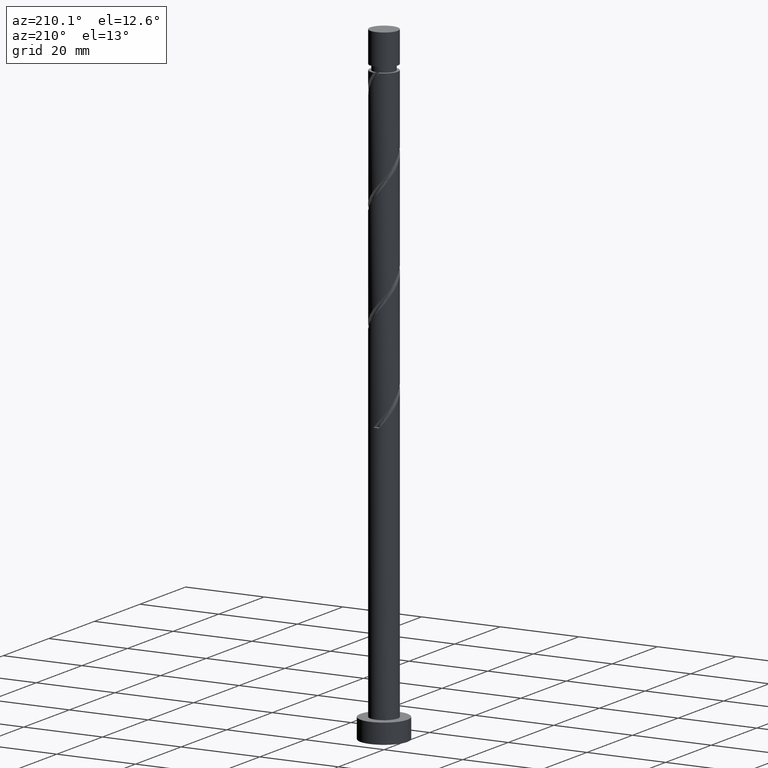
[diagram: clean part render]
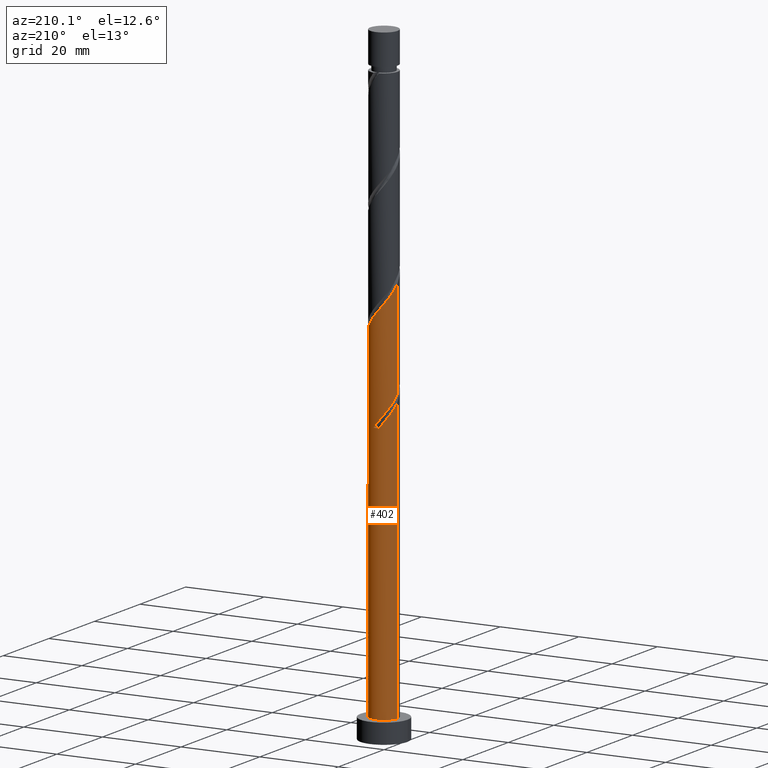
[diagram: same view with one face highlighted and labeled with its STEP entity id]
A machine part, auxiliary view. The second image highlights one B-rep face of the part: STEP entity #402.
In plain terms, the highlighted cylindrical surface (edge-blend (fillet) strip) has radius 3.5 mm, axis along (-0, -0, -1).
Its self-contained STEP definition (entity closure, byte-faithful):
#3 = CARTESIAN_POINT ( 'NONE',  ( -3.500000000000005329, 0.4008512458479243090, 76.10551955723198603 ) ) ;
#21 = LINE ( 'NONE', #39, #1035 ) ;
#39 = CARTESIAN_POINT ( 'NONE',  ( -3.500000000000000000, 0.000000000000000000, 160.0000000000000000 ) ) ;
#43 = CARTESIAN_POINT ( 'NONE',  ( 3.465271467025468954, 0.7036533828274212921, 90.77426732283748834 ) ) ;
#61 = CARTESIAN_POINT ( 'NONE',  ( -3.500000000000005329, 0.4008512458479249752, 102.7721862238986148 ) ) ;
#69 = CARTESIAN_POINT ( 'NONE',  ( 3.295966512314560060, 1.177541825032570211, 91.38032792889809741 ) ) ;
#76 = AXIS2_PLACEMENT_3D ( 'NONE', #310, #812, #1475 ) ;
#99 = CARTESIAN_POINT ( 'NONE',  ( -3.295966512314554286, 1.177541825032570211, 76.83487338344357909 ) ) ;
#107 = CARTESIAN_POINT ( 'NONE',  ( -0.6964912059746338757, 3.430000000000004601, 70.77426732283748834 ) ) ;
#113 = CARTESIAN_POINT ( 'NONE',  ( -3.409370647451654079, 0.7913228091588907498, 75.62275217132236094 ) ) ;
#120 = CARTESIAN_POINT ( 'NONE',  ( -3.295595603951480435, 1.281516304446028265, 75.01669156526173765 ) ) ;
#132 = CARTESIAN_POINT ( 'NONE',  ( -1.634621088283055190, 3.094836651220925994, 71.98638853495872070 ) ) ;
#143 = CARTESIAN_POINT ( 'NONE',  ( -2.801055960780711729, 2.158082465505006375, 100.4712370198071909 ) ) ;
#166 = ORIENTED_EDGE ( 'NONE', *, *, #245, .F. ) ;
#195 =( BOUNDED_CURVE ( )  B_SPLINE_CURVE ( 2, ( #107, #879, #132, #1403, #632, #1001, #1292, #120, #113, #3, #1133 ),
 .UNSPECIFIED., .F., .T. ) 
 B_SPLINE_CURVE_WITH_KNOTS ( ( 3, 2, 2, 2, 2, 3 ),
 ( 0.000000000000000000, 0.01136363636363635354, 0.02272727272727270709, 0.03409090909090906063, 0.04545454545454541417, 0.05452521624175145354 ),
 .UNSPECIFIED. ) 
 CURVE ( )  GEOMETRIC_REPRESENTATION_ITEM ( )  RATIONAL_B_SPLINE_CURVE ( ( 0.9090909090909231605, 0.8998376744372253988, 0.9090909090909231605, 0.8998376744372253988, 0.9090909090909231605, 0.8998376744372253988, 0.9090909090909231605, 0.8998376744372253988, 0.9090909090909231605, 0.9017048011080028846, 0.9061101570135636774 ) ) 
 REPRESENTATION_ITEM ( '' )  );
#205 = CARTESIAN_POINT ( 'NONE',  ( -0.6964912059746338757, 3.430000000000004601, 70.77426732283748834 ) ) ;
#226 = CARTESIAN_POINT ( 'NONE',  ( -2.534748123757047278, 2.465418092830385266, 75.01669156526170923 ) ) ;
#245 = EDGE_CURVE ( 'NONE', #1508, #1474, #21, .T. ) ;
#264 = CARTESIAN_POINT ( 'NONE',  ( -0.6964912059746338757, 3.430000000000004601, 97.44093398950415974 ) ) ;
#278 = EDGE_LOOP ( 'NONE', ( #874, #434, #1178, #166, #1589, #1479, #1054, #528 ) ) ;
#310 = CARTESIAN_POINT ( 'NONE',  ( 0.000000000000000000, 0.000000000000000000, 70.77426732283748834 ) ) ;
#313 = VERTEX_POINT ( 'NONE', #1058 ) ;
#317 = CARTESIAN_POINT ( 'NONE',  ( 0.000000000000000000, 0.000000000000000000, 160.0000000000000000 ) ) ;
#364 = CARTESIAN_POINT ( 'NONE',  ( -0.7994601608701848994, 3.444429978171526852, 72.59244914101931556 ) ) ;
#377 = CARTESIAN_POINT ( 'NONE',  ( -0.2980642516491546212, 3.487285147774530358, 71.98638853495872070 ) ) ;
#402 = ADVANCED_FACE ( 'NONE', ( #1601 ), #1121, .T. ) ;
#417 = VERTEX_POINT ( 'NONE', #1354 ) ;
#434 = ORIENTED_EDGE ( 'NONE', *, *, #1279, .T. ) ;
#443 = LINE ( 'NONE', #957, #1655 ) ;
#454 = CARTESIAN_POINT ( 'NONE',  ( -0.2033316575718749075, 3.530140317377540082, 96.83487338344356488 ) ) ;
#484 = CARTESIAN_POINT ( 'NONE',  ( -1.737484471651192353, 3.079672406947898899, 73.80457035314051950 ) ) ;
#487 = DIRECTION ( 'NONE',  ( -0.000000000000000000, -0.000000000000000000, -1.000000000000000000 ) ) ;
#499 = CARTESIAN_POINT ( 'NONE',  ( -1.268472316260688793, 3.262051192559713098, 73.19850974707995306 ) ) ;
#514 = CARTESIAN_POINT ( 'NONE',  ( 1.737484471651195017, 3.079672406947903784, 94.41063095920114279 ) ) ;
#519 = AXIS2_PLACEMENT_3D ( 'NONE', #317, #711, #721 ) ;
#528 = ORIENTED_EDGE ( 'NONE', *, *, #915, .F. ) ;
#554 = AXIS2_PLACEMENT_3D ( 'NONE', #702, #1614, #965 ) ;
#562 = CARTESIAN_POINT ( 'NONE',  ( 2.534748123757053495, 2.465418092830386598, 93.19850974707991043 ) ) ;
#573 = CARTESIAN_POINT ( 'NONE',  ( -3.499999999999999556, 3.066148244216776154E-15, 78.29038846880504821 ) ) ;
#580 = CARTESIAN_POINT ( 'NONE',  ( 3.126661557603649388, 1.651430267237720129, 91.98638853495874912 ) ) ;
#583 = VERTEX_POINT ( 'NONE', #205 ) ;
#616 = EDGE_CURVE ( 'NONE', #583, #1508, #195, .T. ) ;
#632 = CARTESIAN_POINT ( 'NONE',  ( -2.440323691484713731, 2.508948042662193956, 73.19850974707991043 ) ) ;
#651 = CARTESIAN_POINT ( 'NONE',  ( -3.409370647451654079, 0.7913228091588907498, 102.2894188379889755 ) ) ;
#653 = CARTESIAN_POINT ( 'NONE',  ( -3.500000000000000000, 0.000000000000000000, 5.000000000000000000 ) ) ;
#685 = CARTESIAN_POINT ( 'NONE',  ( 2.830704840680350998, 2.058424180034053474, 92.59244914101930135 ) ) ;
#702 = CARTESIAN_POINT ( 'NONE',  ( 0.000000000000000000, 0.000000000000000000, 5.000000000000000000 ) ) ;
#705 = CARTESIAN_POINT ( 'NONE',  ( 3.500000000000004885, 1.929429870751030982E-15, 89.92481284353657145 ) ) ;
#711 = DIRECTION ( 'NONE',  ( -0.000000000000000000, -0.000000000000000000, -1.000000000000000000 ) ) ;
#721 = DIRECTION ( 'NONE',  ( -1.000000000000000000, 0.000000000000000000, 0.000000000000000000 ) ) ;
#728 = EDGE_CURVE ( 'NONE', #784, #1048, #1460, .T. ) ;
#772 = EDGE_CURVE ( 'NONE', #313, #417, #1049, .T. ) ;
#779 = CARTESIAN_POINT ( 'NONE',  ( -1.189650754377394204, 3.329859682622471340, 98.04699459556476882 ) ) ;
#784 = VERTEX_POINT ( 'NONE', #573 ) ;
#812 = DIRECTION ( 'NONE',  ( 0.000000000000000000, -0.000000000000000000, -1.000000000000000000 ) ) ;
#813 = VECTOR ( 'NONE', #487, 1000.000000000000000 ) ;
#818 = CIRCLE ( 'NONE', #76, 3.500000000000000000 ) ;
#839 = CARTESIAN_POINT ( 'NONE',  ( 3.500000000000005773, 0.1007143428333791696, 90.04691084825481084 ) ) ;
#865 = CARTESIAN_POINT ( 'NONE',  ( -2.830704840680345669, 2.058424180034052586, 75.62275217132237515 ) ) ;
#872 = CARTESIAN_POINT ( 'NONE',  ( 0.2033316575718757679, 3.530140317377534309, 71.38032792889809741 ) ) ;
#874 = ORIENTED_EDGE ( 'NONE', *, *, #772, .F. ) ;
#879 = CARTESIAN_POINT ( 'NONE',  ( -1.189650754377394204, 3.329859682622471340, 71.38032792889809741 ) ) ;
#904 = CARTESIAN_POINT ( 'NONE',  ( 3.494208578988649894, 0.2012620344778335846, 90.16820671677687926 ) ) ;
#915 = EDGE_CURVE ( 'NONE', #417, #784, #997, .T. ) ;
#950 = CARTESIAN_POINT ( 'NONE',  ( -3.295595603951480435, 1.281516304446028265, 101.6833582319284091 ) ) ;
#952 = VERTEX_POINT ( 'NONE', #1546 ) ;
#957 = CARTESIAN_POINT ( 'NONE',  ( 3.500000000000000000, 4.286263797015736595E-16, 160.0000000000000000 ) ) ;
#965 = DIRECTION ( 'NONE',  ( 1.000000000000000000, 0.000000000000000000, 0.000000000000000000 ) ) ;
#997 = LINE ( 'NONE', #1515, #813 ) ;
#1001 = CARTESIAN_POINT ( 'NONE',  ( -2.801055960780711729, 2.158082465505006375, 73.80457035314053371 ) ) ;
#1032 = CARTESIAN_POINT ( 'NONE',  ( -1.634621088283055190, 3.094836651220925994, 98.65305520162539210 ) ) ;
#1035 = VECTOR ( 'NONE', #1347, 1000.000000000000000 ) ;
#1048 = VERTEX_POINT ( 'NONE', #1654 ) ;
#1049 =( BOUNDED_CURVE ( )  B_SPLINE_CURVE ( 2, ( #705, #839, #904, #43, #69, #580, #685, #562, #1097, #514, #1210, #1464, #1077, #454, #264, #779, #1032, #1310, #1223, #143, #1598, #950, #651, #61, #1066 ),
 .UNSPECIFIED., .F., .T. ) 
 B_SPLINE_CURVE_WITH_KNOTS ( ( 3, 2, 2, 2, 2, 2, 2, 2, 2, 2, 2, 2, 3 ),
 ( 0.1795252162417513286, 0.1818181818181817677, 0.1931818181818182323, 0.2045454545454545858, 0.2159090909090909394, 0.2272727272727272929, 0.2386363636363636465, 0.2500000000000000000, 0.2613636363636363535, 0.2727272727272727071, 0.2840909090909090606, 0.2954545454545454142, 0.3045252162417514397 ),
 .UNSPECIFIED. ) 
 CURVE ( )  GEOMETRIC_REPRESENTATION_ITEM ( )  RATIONAL_B_SPLINE_CURVE ( ( 0.9061101570135635663, 0.9072237824201456746, 0.9090909090909231605, 0.8998376744372253988, 0.9090909090909231605, 0.8998376744372253988, 0.9090909090909231605, 0.8998376744372253988, 0.9090909090909231605, 0.8998376744372253988, 0.9090909090909231605, 0.8998376744372253988, 0.9090909090909231605, 0.8998376744372253988, 0.9090909090909231605, 0.8998376744372253988, 0.9090909090909231605, 0.8998376744372253988, 0.9090909090909231605, 0.8998376744372253988, 0.9090909090909231605, 0.8998376744372253988, 0.9090909090909231605, 0.9017048011080028846, 0.9061101570135635663 ) ) 
 REPRESENTATION_ITEM ( '' )  );
#1054 = ORIENTED_EDGE ( 'NONE', *, *, #728, .F. ) ;
#1058 = CARTESIAN_POINT ( 'NONE',  ( 3.500000000000004885, 1.929429870751030982E-15, 89.92481284353658566 ) ) ;
#1062 = CIRCLE ( 'NONE', #554, 3.500000000000000000 ) ;
#1066 = CARTESIAN_POINT ( 'NONE',  ( -3.500000000000004885, -2.093954898489490264E-15, 103.2581461768699569 ) ) ;
#1077 = CARTESIAN_POINT ( 'NONE',  ( 0.2980642516491557870, 3.487285147774535243, 96.22881277738294159 ) ) ;
#1097 = CARTESIAN_POINT ( 'NONE',  ( 2.136116297704123035, 2.772545249889145413, 93.80457035314049108 ) ) ;
#1121 = CYLINDRICAL_SURFACE ( 'NONE', #519, 3.500000000000000000 ) ;
#1133 = CARTESIAN_POINT ( 'NONE',  ( -3.500000000000004441, -2.093954898489490658E-15, 76.59147951020328549 ) ) ;
#1178 = ORIENTED_EDGE ( 'NONE', *, *, #1629, .T. ) ;
#1210 = CARTESIAN_POINT ( 'NONE',  ( 1.268472316260691013, 3.262051192559717538, 95.01669156526173765 ) ) ;
#1223 = CARTESIAN_POINT ( 'NONE',  ( -2.440323691484713731, 2.508948042662193956, 99.86517641374655341 ) ) ;
#1268 = CARTESIAN_POINT ( 'NONE',  ( -3.465271467025464069, 0.7036533828274215141, 77.44093398950417395 ) ) ;
#1279 = EDGE_CURVE ( 'NONE', #313, #952, #443, .T. ) ;
#1292 = CARTESIAN_POINT ( 'NONE',  ( -3.048325782366095638, 1.719799384975517098, 74.41063095920111436 ) ) ;
#1310 = CARTESIAN_POINT ( 'NONE',  ( -2.079591422188716621, 2.859813619819381980, 99.25911580768600118 ) ) ;
#1314 = EDGE_CURVE ( 'NONE', #583, #1048, #818, .T. ) ;
#1347 = DIRECTION ( 'NONE',  ( -0.000000000000000000, -0.000000000000000000, -1.000000000000000000 ) ) ;
#1354 = CARTESIAN_POINT ( 'NONE',  ( -3.500000000000004885, -2.093954898489490658E-15, 103.2581461768699569 ) ) ;
#1403 = CARTESIAN_POINT ( 'NONE',  ( -2.079591422188716621, 2.859813619819381980, 72.59244914101930135 ) ) ;
#1417 = CARTESIAN_POINT ( 'NONE',  ( -3.500000000000004885, -2.093954898489490658E-15, 76.59147951020327127 ) ) ;
#1460 =( BOUNDED_CURVE ( )  B_SPLINE_CURVE ( 2, ( #1518, #1533, #1657, #1268, #99, #1512, #865, #226, #1645, #484, #499, #364, #377, #872, #1651 ),
 .UNSPECIFIED., .F., .T. ) 
 B_SPLINE_CURVE_WITH_KNOTS ( ( 3, 2, 2, 2, 2, 2, 2, 3 ),
 ( 0.9295252162417513286, 0.9318181818181817677, 0.9431818181818182323, 0.9545454545454545858, 0.9659090909090909394, 0.9772727272727272929, 0.9886363636363636465, 1.000000000000000000 ),
 .UNSPECIFIED. ) 
 CURVE ( )  GEOMETRIC_REPRESENTATION_ITEM ( )  RATIONAL_B_SPLINE_CURVE ( ( 0.9061101570135571270, 0.9072237824201392353, 0.9090909090909166101, 0.8998376744372190705, 0.9090909090909166101, 0.8998376744372190705, 0.9090909090909166101, 0.8998376744372190705, 0.9090909090909166101, 0.8998376744372190705, 0.9090909090909166101, 0.8998376744372190705, 0.9090909090909166101, 0.8998376744372190705, 0.9090909090909166101 ) ) 
 REPRESENTATION_ITEM ( '' )  );
#1462 = DIRECTION ( 'NONE',  ( -0.000000000000000000, -0.000000000000000000, -1.000000000000000000 ) ) ;
#1464 = CARTESIAN_POINT ( 'NONE',  ( 0.7994601608701871198, 3.444429978171531737, 95.62275217132237515 ) ) ;
#1474 = VERTEX_POINT ( 'NONE', #653 ) ;
#1475 = DIRECTION ( 'NONE',  ( -1.000000000000000000, 0.000000000000000000, 0.000000000000000000 ) ) ;
#1479 = ORIENTED_EDGE ( 'NONE', *, *, #1314, .T. ) ;
#1508 = VERTEX_POINT ( 'NONE', #1417 ) ;
#1512 = CARTESIAN_POINT ( 'NONE',  ( -3.126661557603643171, 1.651430267237719463, 76.22881277738294159 ) ) ;
#1515 = CARTESIAN_POINT ( 'NONE',  ( -3.500000000000000000, 0.000000000000000000, 160.0000000000000000 ) ) ;
#1518 = CARTESIAN_POINT ( 'NONE',  ( -3.499999999999999556, 3.066148244216776154E-15, 78.29038846880504821 ) ) ;
#1533 = CARTESIAN_POINT ( 'NONE',  ( -3.500000000000000000, 0.1007143428333802798, 78.16829046408683723 ) ) ;
#1546 = CARTESIAN_POINT ( 'NONE',  ( 3.500000000000000000, 4.286263797015736595E-16, 5.000000000000000000 ) ) ;
#1589 = ORIENTED_EDGE ( 'NONE', *, *, #616, .F. ) ;
#1598 = CARTESIAN_POINT ( 'NONE',  ( -3.048325782366095638, 1.719799384975517098, 101.0772976258678000 ) ) ;
#1601 = FACE_OUTER_BOUND ( 'NONE', #278, .T. ) ;
#1614 = DIRECTION ( 'NONE',  ( 0.000000000000000000, 0.000000000000000000, 1.000000000000000000 ) ) ;
#1629 = EDGE_CURVE ( 'NONE', #952, #1474, #1062, .T. ) ;
#1645 = CARTESIAN_POINT ( 'NONE',  ( -2.136116297704119926, 2.772545249889141417, 74.41063095920110015 ) ) ;
#1651 = CARTESIAN_POINT ( 'NONE',  ( 0.6964912059746353190, 3.430000000000000604, 70.77426732283750255 ) ) ;
#1654 = CARTESIAN_POINT ( 'NONE',  ( 0.6964912059746353190, 3.430000000000000604, 70.77426732283748834 ) ) ;
#1655 = VECTOR ( 'NONE', #1462, 1000.000000000000000 ) ;
#1657 = CARTESIAN_POINT ( 'NONE',  ( -3.494208578988645009, 0.2012620344778347226, 78.04699459556478303 ) ) ;